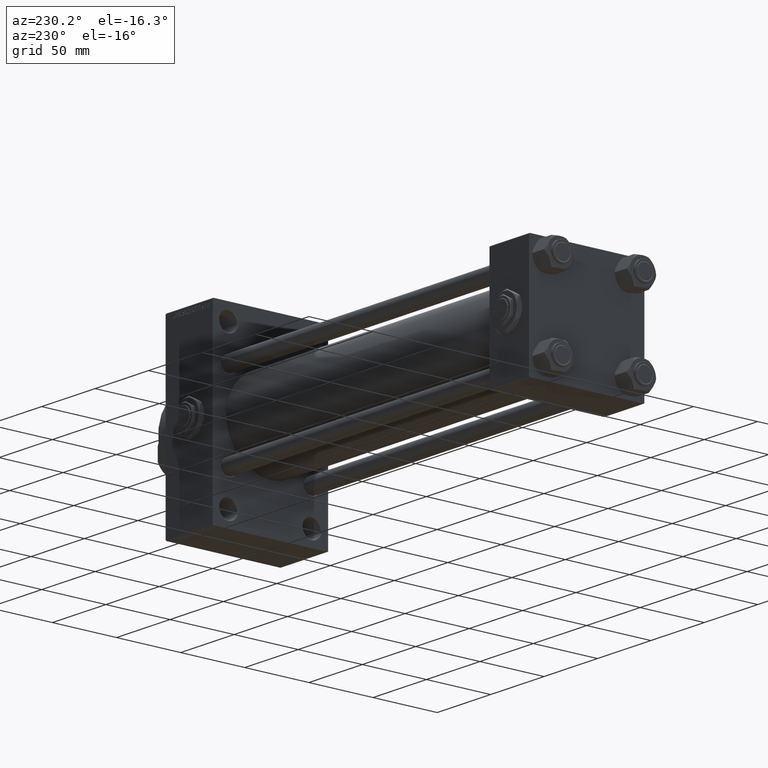
[diagram: clean part render]
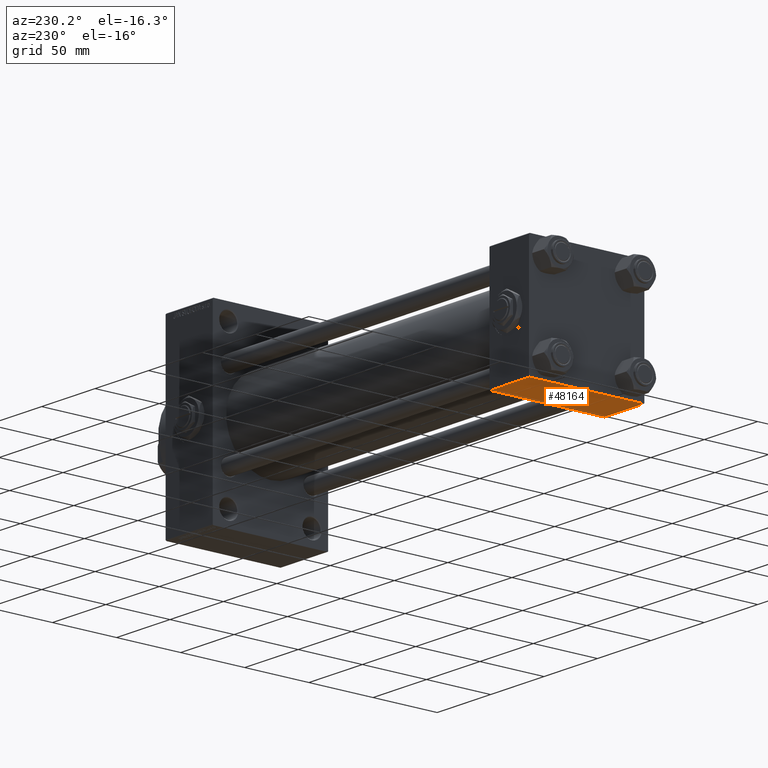
[diagram: same view with one face highlighted and labeled with its STEP entity id]
A machine part, auxiliary view. The second image highlights one B-rep face of the part: STEP entity #48164.
In plain terms, the highlighted planar face has unit normal (0, 0, -1).
Its self-contained STEP definition (entity closure, byte-faithful):
#1183 = VERTEX_POINT ( 'NONE', #16816 ) ;
#1914 = EDGE_CURVE ( 'NONE', #31513, #8367, #44338, .T. ) ;
#2764 = AXIS2_PLACEMENT_3D ( 'NONE', #34369, #14943, #30886 ) ;
#3255 = EDGE_CURVE ( 'NONE', #8367, #1183, #25331, .T. ) ;
#5231 = VERTEX_POINT ( 'NONE', #9043 ) ;
#6133 = EDGE_LOOP ( 'NONE', ( #34335, #18225, #40907, #28104 ) ) ;
#7804 = VECTOR ( 'NONE', #21122, 1000.000000000000000 ) ;
#8367 = VERTEX_POINT ( 'NONE', #17717 ) ;
#8907 = LINE ( 'NONE', #32088, #7804 ) ;
#9043 = CARTESIAN_POINT ( 'NONE',  ( 0.000000000000000000, 44.49999999999998579, -44.99999999999998579 ) ) ;
#9198 = VECTOR ( 'NONE', #25386, 1000.000000000000000 ) ;
#9667 = CARTESIAN_POINT ( 'NONE',  ( 37.00000000000000000, 44.49999999999998579, -44.99999999999998579 ) ) ;
#13901 = EDGE_CURVE ( 'NONE', #5231, #31513, #40586, .T. ) ;
#14943 = DIRECTION ( 'NONE',  ( 0.000000000000000000, 1.541976423090495880E-16, -1.000000000000000000 ) ) ;
#16816 = CARTESIAN_POINT ( 'NONE',  ( 0.000000000000000000, -44.49999999999995737, -45.00000000000000000 ) ) ;
#17717 = CARTESIAN_POINT ( 'NONE',  ( 37.00000000000000000, -44.49999999999995737, -45.00000000000000000 ) ) ;
#18225 = ORIENTED_EDGE ( 'NONE', *, *, #13901, .T. ) ;
#21122 = DIRECTION ( 'NONE',  ( 0.000000000000000000, -1.000000000000000000, -1.541976423090495633E-16 ) ) ;
#23140 = VECTOR ( 'NONE', #32561, 1000.000000000000000 ) ;
#24837 = CARTESIAN_POINT ( 'NONE',  ( 0.000000000000000000, -44.49999999999998579, -45.00000000000000000 ) ) ;
#25331 = LINE ( 'NONE', #24837, #23140 ) ;
#25386 = DIRECTION ( 'NONE',  ( 1.000000000000000000, 0.000000000000000000, 0.000000000000000000 ) ) ;
#28104 = ORIENTED_EDGE ( 'NONE', *, *, #3255, .T. ) ;
#30646 = FACE_OUTER_BOUND ( 'NONE', #6133, .T. ) ;
#30886 = DIRECTION ( 'NONE',  ( 0.000000000000000000, 1.000000000000000000, 1.541976423090495880E-16 ) ) ;
#31513 = VERTEX_POINT ( 'NONE', #9667 ) ;
#32088 = CARTESIAN_POINT ( 'NONE',  ( 0.000000000000000000, 44.99999999999998579, -44.99999999999998579 ) ) ;
#32373 = DIRECTION ( 'NONE',  ( 0.000000000000000000, -1.000000000000000000, -1.541976423090495633E-16 ) ) ;
#32561 = DIRECTION ( 'NONE',  ( -1.000000000000000000, 0.000000000000000000, 0.000000000000000000 ) ) ;
#33357 = CARTESIAN_POINT ( 'NONE',  ( 37.00000000000000000, 44.49999999999998579, -44.99999999999998579 ) ) ;
#34335 = ORIENTED_EDGE ( 'NONE', *, *, #40628, .F. ) ;
#34369 = CARTESIAN_POINT ( 'NONE',  ( 37.00000000000000000, 44.99999999999998579, -44.99999999999998579 ) ) ;
#40586 = LINE ( 'NONE', #33357, #9198 ) ;
#40628 = EDGE_CURVE ( 'NONE', #5231, #1183, #8907, .T. ) ;
#40907 = ORIENTED_EDGE ( 'NONE', *, *, #1914, .T. ) ;
#42344 = PLANE ( 'NONE',  #2764 ) ;
#43897 = VECTOR ( 'NONE', #32373, 1000.000000000000000 ) ;
#44338 = LINE ( 'NONE', #48316, #43897 ) ;
#48164 = ADVANCED_FACE ( 'NONE', ( #30646 ), #42344, .T. ) ;
#48316 = CARTESIAN_POINT ( 'NONE',  ( 37.00000000000000000, 44.99999999999998579, -44.99999999999998579 ) ) ;